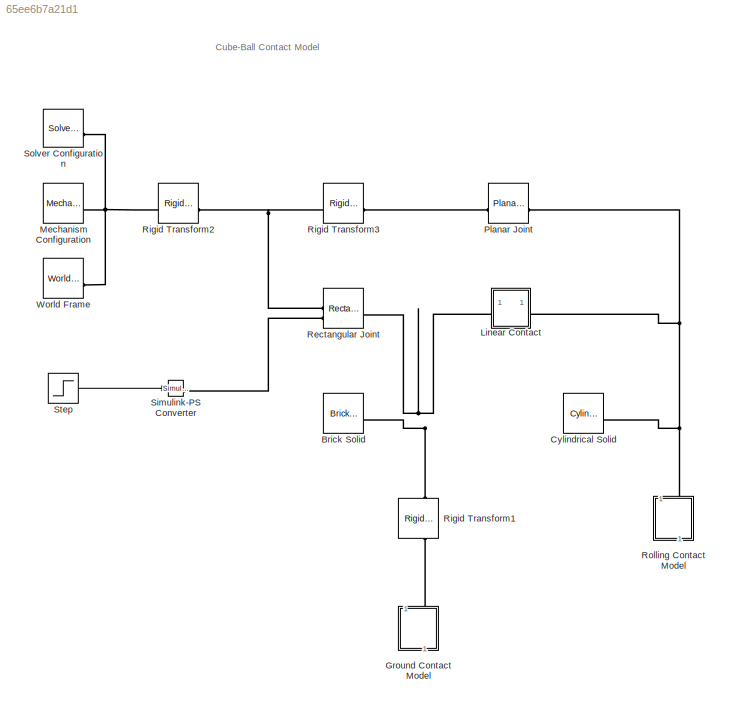
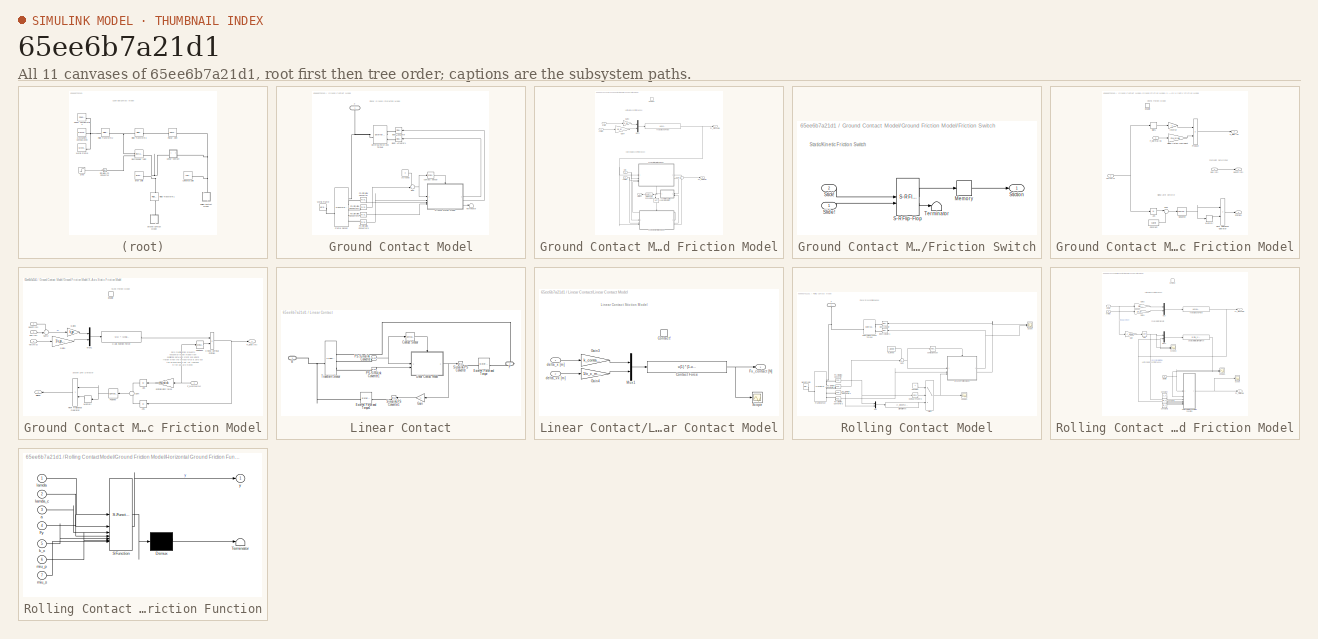
[diagram: thumbnail index - all 11 canvases of the model, root first then tree order]
MODEL slx_65ee6b7a21d1
KIND model
CONFIG AbsTol = auto
CONFIG EnableMultiTasking = off
CONFIG FixedStep = auto
CONFIG MaxStep = auto
CONFIG MinStep = auto
CONFIG RelTol = 1e-3
CONFIG SampleTimeConstraint = Unconstrained
CONFIG SolverName = VariableStepAuto
CONFIG StartTime = 0.0
CONFIG StopTime = 1
BLOCK [Reference] Brick Solid  REF=sm_lib/Body Elements/Brick Solid
  SourceBlock = sm_lib/Body Elements/Brick Solid
  SourceType = Brick Solid
BLOCK [Reference] Cylindrical Solid  REF=sm_lib/Body Elements/Cylindrical Solid
  SourceBlock = sm_lib/Body Elements/Cylindrical Solid
  SourceType = Cylindrical Solid
BLOCK [SubSystem] Ground Contact Model
  NameLocation = left
BLOCK [Reference] Ground Contact Model/ Body Actuator  REF=nesl_utility/Simulink-PS
Converter
  SourceBlock = nesl_utility/Simulink-PS\nConverter
  SourceType = Simulink-PS\nConverter
BLOCK [Reference] Ground Contact Model/ Body Actuator1  REF=nesl_utility/Simulink-PS
Converter
  SourceBlock = nesl_utility/Simulink-PS\nConverter
  SourceType = Simulink-PS\nConverter
BLOCK [Reference] Ground Contact Model/External Force and Torque  REF=sm_lib/Forces and
Torques/External Force
and Torque
  SourceBlock = sm_lib/Forces and\nTorques/External Force\nand Torque
  SourceType = External Force\nand Torque
BLOCK [PMIOPort] Ground Contact Model/F
  NameLocation = right
  Side = Left
BLOCK [Reference] Ground Contact Model/Frame Sensor  REF=sm_lib/Frames and
Transforms/Transform
Sensor
  SourceBlock = sm_lib/Frames and\nTransforms/Transform\nSensor
  SourceType = Transform\nSensor
BLOCK [SubSystem] Ground Contact Model/Ground Friction Model
BLOCK [EnablePort] Ground Contact Model/Ground Friction Model/Contact!
  StatesWhenEnabling = reset
BLOCK [DataTypeConversion] Ground Contact Model/Ground Friction Model/Data Type Conversion
  OutDataTypeStr = double
  RndMeth = Floor
  SaturateOnIntegerOverflow = off
BLOCK [SubSystem] Ground Contact Model/Ground Friction Model/Friction Switch
BLOCK [Memory] Ground Contact Model/Ground Friction Model/Friction Switch/Memory
BLOCK [Reference] Ground Contact Model/Ground Friction Model/Friction Switch/S-R Flip-Flop  REF=simulink_extras/Flip Flops/S-R
Flip-Flop
  SourceBlock = simulink_extras/Flip Flops/S-R\nFlip-Flop
  SourceType = SRFlipFlop
BLOCK [Inport] Ground Contact Model/Ground Friction Model/Friction Switch/Slide!
BLOCK [Inport] Ground Contact Model/Ground Friction Model/Friction Switch/Stick!
  NameLocation = top
  Port = 2
BLOCK [Outport] Ground Contact Model/Ground Friction Model/Friction Switch/Stiction
BLOCK [Terminator] Ground Contact Model/Ground Friction Model/Friction Switch/Terminator
BLOCK [Outport] Ground Contact Model/Ground Friction Model/Fx_Friction [N]
  AttributesFormatString = initial = '%<InitialOutput>'\nwhen\ndisabled\n'%<OutputWhenDisabled>'
  InitialOutput = 0
  OutputWhenDisabled = reset
  Port = 2
BLOCK [Outport] Ground Contact Model/Ground Friction Model/Fy_Ground[N]
  AttributesFormatString = initial = '%<InitialOutput>'\nwhen disabled = '%<OutputWhenDisabled>'
  InitialOutput = 0
  OutputWhenDisabled = reset
BLOCK [Gain] Ground Contact Model/Ground Friction Model/Gain3
  Gain = k_gy
BLOCK [Gain] Ground Contact Model/Ground Friction Model/Gain4
  Gain = 1/v_gy_max
BLOCK [Logic] Ground Contact Model/Ground Friction Model/Logical Operator
  AllPortsSameDT = off
  NameLocation = left
  Operator = NOT
  OutDataTypeStr = boolean
BLOCK [Mux] Ground Contact Model/Ground Friction Model/Mux1
  DisplayOption = bar
  Inputs = 2
BLOCK [Outport] Ground Contact Model/Ground Friction Model/Stiction!
  AttributesFormatString = initial = '%<InitialOutput>'\nwhen\ndisabled\n'%<OutputWhenDisabled>'
  InitialOutput = 0
  OutputWhenDisabled = reset
  Port = 3
BLOCK [Sum] Ground Contact Model/Ground Friction Model/Sum1
BLOCK [SubSystem] Ground Contact Model/Ground Friction Model/X-Axis Kinetic Friction Model
BLOCK [Abs] Ground Contact Model/Ground Friction Model/X-Axis Kinetic Friction Model/Abs
  SaturateOnIntegerOverflow = off
BLOCK [Constant] Ground Contact Model/Ground Friction Model/X-Axis Kinetic Friction Model/Constant
  Value = vLimit
BLOCK [EnablePort] Ground Contact Model/Ground Friction Model/X-Axis Kinetic Friction Model/Enable
  StatesWhenEnabling = reset
  ZeroCross = off
BLOCK [Inport] Ground Contact Model/Ground Friction Model/X-Axis Kinetic Friction Model/F_Normal [N]
  Port = 3
BLOCK [Outport] Ground Contact Model/Ground Friction Model/X-Axis Kinetic Friction Model/F_Slide [N]
  AttributesFormatString = initial = '%<InitialOutput>'\nwhen disabled = '%<OutputWhenDisabled>'
  InitialOutput = 0
  OutputWhenDisabled = reset
  Port = 3
BLOCK [RelationalOperator] Ground Contact Model/Ground Friction Model/X-Axis Kinetic Friction Model/FixPt Relational Operator
  InputSameDT = off
  Operator = >
  OutDataTypeStr = boolean
  ZeroCross = off
BLOCK [Memory] Ground Contact Model/Ground Friction Model/X-Axis Kinetic Friction Model/Memory
BLOCK [Reference] Ground Contact Model/Ground Friction Model/X-Axis Kinetic Friction Model/Negative  REF=simulink/Logic and Bit
Operations/Compare
To Zero
  SourceBlock = simulink/Logic and Bit\nOperations/Compare\nTo Zero
  SourceType = Compare To Zero
BLOCK [Product] Ground Contact Model/Ground Friction Model/X-Axis Kinetic Friction Model/Product
  RndMeth = Zero
BLOCK [Signum] Ground Contact Model/Ground Friction Model/X-Axis Kinetic Friction Model/Sign1
BLOCK [Outport] Ground Contact Model/Ground Friction Model/X-Axis Kinetic Friction Model/Stiction!
  AttributesFormatString = initial = '%<InitialOutput>'\nwhen disabled = '%<OutputWhenDisabled>'
  InitialOutput = 0
  OutputWhenDisabled = reset
  Port = 2
BLOCK [Sum] Ground Contact Model/Ground Friction Model/X-Axis Kinetic Friction Model/Sum
  Inputs = |+-
BLOCK [Inport] Ground Contact Model/Ground Friction Model/X-Axis Kinetic Friction Model/pos [m]
BLOCK [Outport] Ground Contact Model/Ground Friction Model/X-Axis Kinetic Friction Model/posFP [m]
  AttributesFormatString = initial = '%<InitialOutput>'\nwhen disabled = '%<OutputWhenDisabled>'
  InitialOutput = 0
BLOCK [Gain] Ground Contact Model/Ground Friction Model/X-Axis Kinetic Friction Model/reverse
  Gain = -1
BLOCK [Gain] Ground Contact Model/Ground Friction Model/X-Axis Kinetic Friction Model/sliding friction coefficient
  Gain = mu_slide
BLOCK [Inport] Ground Contact Model/Ground Friction Model/X-Axis Kinetic Friction Model/vel [m//s]
  NameLocation = top
  Port = 2
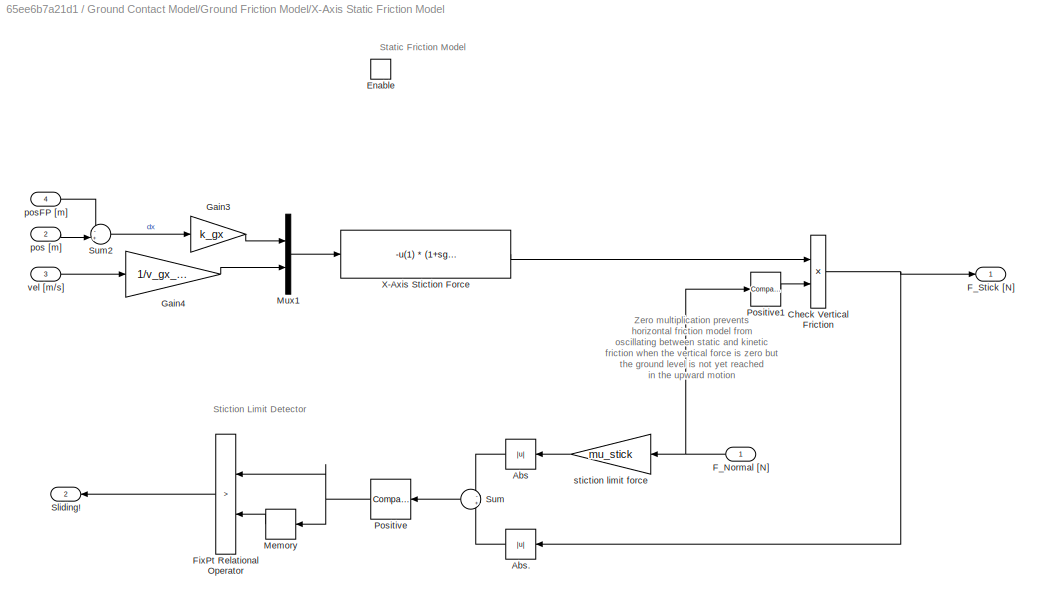
BLOCK [SubSystem] Ground Contact Model/Ground Friction Model/X-Axis Static Friction Model
  NameLocation = top
BLOCK [Abs] Ground Contact Model/Ground Friction Model/X-Axis Static Friction Model/Abs
  NameLocation = top
  SaturateOnIntegerOverflow = off
BLOCK [Abs] Ground Contact Model/Ground Friction Model/X-Axis Static Friction Model/Abs.
  SaturateOnIntegerOverflow = off
BLOCK [Product] Ground Contact Model/Ground Friction Model/X-Axis Static Friction Model/Check Vertical Friction
  RndMeth = Zero
BLOCK [EnablePort] Ground Contact Model/Ground Friction Model/X-Axis Static Friction Model/Enable
  StatesWhenEnabling = reset
  ZeroCross = off
BLOCK [Inport] Ground Contact Model/Ground Friction Model/X-Axis Static Friction Model/F_Normal [N]
  NameLocation = top
BLOCK [Outport] Ground Contact Model/Ground Friction Model/X-Axis Static Friction Model/F_Stick [N]
  AttributesFormatString = when disabled: %<OutputWhenDisabled>\ninitial: %<InitialOutput>
  InitialOutput = 0
  OutputWhenDisabled = reset
BLOCK [RelationalOperator] Ground Contact Model/Ground Friction Model/X-Axis Static Friction Model/FixPt Relational Operator
  InputSameDT = off
  Operator = >
  OutDataTypeStr = boolean
  ZeroCross = off
BLOCK [Gain] Ground Contact Model/Ground Friction Model/X-Axis Static Friction Model/Gain3
  Gain = k_gx
BLOCK [Gain] Ground Contact Model/Ground Friction Model/X-Axis Static Friction Model/Gain4
  Gain = 1/v_gx_max
BLOCK [Memory] Ground Contact Model/Ground Friction Model/X-Axis Static Friction Model/Memory
  NameLocation = top
BLOCK [Mux] Ground Contact Model/Ground Friction Model/X-Axis Static Friction Model/Mux1
  DisplayOption = bar
  Inputs = 2
BLOCK [Reference] Ground Contact Model/Ground Friction Model/X-Axis Static Friction Model/Positive  REF=simulink/Logic and Bit
Operations/Compare
To Zero
  SourceBlock = simulink/Logic and Bit\nOperations/Compare\nTo Zero
  SourceType = Compare To Zero
BLOCK [Reference] Ground Contact Model/Ground Friction Model/X-Axis Static Friction Model/Positive1  REF=simulink/Logic and Bit
Operations/Compare
To Zero
  NameLocation = top
  SourceBlock = simulink/Logic and Bit\nOperations/Compare\nTo Zero
  SourceType = Compare To Zero
BLOCK [Outport] Ground Contact Model/Ground Friction Model/X-Axis Static Friction Model/Sliding!
  AttributesFormatString = when disabled: %<OutputWhenDisabled>\ninitial: %<InitialOutput>
  InitialOutput = 0
  OutputWhenDisabled = reset
  Port = 2
BLOCK [Sum] Ground Contact Model/Ground Friction Model/X-Axis Static Friction Model/Sum
  Inputs = -+
  NameLocation = top
BLOCK [Sum] Ground Contact Model/Ground Friction Model/X-Axis Static Friction Model/Sum2
  Inputs = -+|
BLOCK [Fcn] Ground Contact Model/Ground Friction Model/X-Axis Static Friction Model/X-Axis Stiction Force
  Expr = -u(1) * (1+sgn(u(1))*u(2))
BLOCK [Inport] Ground Contact Model/Ground Friction Model/X-Axis Static Friction Model/pos [m]
  Port = 2
BLOCK [Inport] Ground Contact Model/Ground Friction Model/X-Axis Static Friction Model/posFP [m]
  NameLocation = top
  Port = 4
BLOCK [Gain] Ground Contact Model/Ground Friction Model/X-Axis Static Friction Model/stiction limit force
  Gain = mu_stick
  NameLocation = top
BLOCK [Inport] Ground Contact Model/Ground Friction Model/X-Axis Static Friction Model/vel [m//s]
  Port = 3
BLOCK [Fcn] Ground Contact Model/Ground Friction Model/Y-Axis Ground Force
  Expr = - u(1)  *  (1-u(2)) * (u(2)<1)
BLOCK [Inport] Ground Contact Model/Ground Friction Model/dy [m]
  NameLocation = top
BLOCK [Inport] Ground Contact Model/Ground Friction Model/vx [m//s]
  Port = 4
BLOCK [Inport] Ground Contact Model/Ground Friction Model/vy [m//s]
  Port = 2
BLOCK [Inport] Ground Contact Model/Ground Friction Model/x [m]
  Port = 3
BLOCK [Reference] Ground Contact Model/PS-Simulink Converter  REF=nesl_utility/PS-Simulink
Converter
  SourceBlock = nesl_utility/PS-Simulink\nConverter
  SourceType = PS-Simulink\nConverter
BLOCK [Reference] Ground Contact Model/PS-Simulink Converter1  REF=nesl_utility/PS-Simulink
Converter
  SourceBlock = nesl_utility/PS-Simulink\nConverter
  SourceType = PS-Simulink\nConverter
BLOCK [Reference] Ground Contact Model/PS-Simulink Converter2  REF=nesl_utility/PS-Simulink
Converter
  SourceBlock = nesl_utility/PS-Simulink\nConverter
  SourceType = PS-Simulink\nConverter
BLOCK [Reference] Ground Contact Model/PS-Simulink Converter3  REF=nesl_utility/PS-Simulink
Converter
  SourceBlock = nesl_utility/PS-Simulink\nConverter
  SourceType = PS-Simulink\nConverter
BLOCK [Sum] Ground Contact Model/Sum
  Inputs = -+|
BLOCK [Terminator] Ground Contact Model/Terminator
BLOCK [Reference] Ground Contact Model/World Frame  REF=sm_lib/Frames and
Transforms/World Frame
  SourceBlock = sm_lib/Frames and\nTransforms/World Frame
  SourceType = World Frame
BLOCK [Reference] Ground Contact Model/contact sensor  REF=simulink/Logic and Bit
Operations/Compare
To Zero
  NameLocation = top
  SourceBlock = simulink/Logic and Bit\nOperations/Compare\nTo Zero
  SourceType = Compare To Zero
BLOCK [Constant] Ground Contact Model/yGround
  Value = 0
BLOCK [SubSystem] Linear Contact
  NameLocation = top
BLOCK [PMIOPort] Linear Contact/B
  Side = Left
BLOCK [Reference] Linear Contact/Contact Sensor  REF=simulink/Logic and Bit
Operations/Compare
To Constant
  SourceBlock = simulink/Logic and Bit\nOperations/Compare\nTo Constant
  SourceType = Compare To Constant
BLOCK [Reference] Linear Contact/External Force and Torque  REF=sm_lib/Forces and
Torques/External Force
and Torque
  SourceBlock = sm_lib/Forces and\nTorques/External Force\nand Torque
  SourceType = External Force\nand Torque
BLOCK [Reference] Linear Contact/External Force and Torque1  REF=sm_lib/Forces and
Torques/External Force
and Torque
  NameLocation = top
  SourceBlock = sm_lib/Forces and\nTorques/External Force\nand Torque
  SourceType = External Force\nand Torque
BLOCK [PMIOPort] Linear Contact/F
  NameLocation = top
  Port = 2
  Side = Right
BLOCK [Gain] Linear Contact/Gain
  Gain = -1
  NameLocation = top
BLOCK [SubSystem] Linear Contact/Linear Contact Model
BLOCK [Fcn] Linear Contact/Linear Contact Model/Contact Force
  Expr = u(1)  *  (1-u(2)) * (u(2)<1)
BLOCK [EnablePort] Linear Contact/Linear Contact Model/Contact!
  StatesWhenEnabling = reset
BLOCK [Outport] Linear Contact/Linear Contact Model/Fx_contact [N]
  InitialOutput = 0
  OutputWhenDisabled = reset
BLOCK [Gain] Linear Contact/Linear Contact Model/Gain3
  Gain = k_contact
BLOCK [Gain] Linear Contact/Linear Contact Model/Gain4
  Gain = 1/v_c_max
BLOCK [Mux] Linear Contact/Linear Contact Model/Mux1
  DisplayOption = bar
  Inputs = 2
BLOCK [Scope] Linear Contact/Linear Contact Model/Scope
  Floating = off
  NumInputPorts = 1
  ScopeSpecificationString = Simulink.scopes.TimeScopeBlockCfg('CurrentConfiguration', extmgr.ConfigurationSet(extmgr.Configuration('Core','General UI',true),extmgr.Configuration('Core','Source UI',true),extmgr.Configuration('Sources','WiredSimulink',true),extmgr.Configuration('Visuals','Time Domain',true,'SerializedDisplays',{struct('MinYLimReal','-1382576.13519','MaxYLimReal','12443185.21671','YLabelReal','','MinYLimMag',' ...<+1497ch>
BLOCK [Inport] Linear Contact/Linear Contact Model/delta_vx [m]
  Port = 2
BLOCK [Inport] Linear Contact/Linear Contact Model/delta_x [m]
BLOCK [Reference] Linear Contact/PS-Simulink Converter  REF=nesl_utility/PS-Simulink
Converter
  SourceBlock = nesl_utility/PS-Simulink\nConverter
  SourceType = PS-Simulink\nConverter
BLOCK [Reference] Linear Contact/PS-Simulink Converter1  REF=nesl_utility/PS-Simulink
Converter
  SourceBlock = nesl_utility/PS-Simulink\nConverter
  SourceType = PS-Simulink\nConverter
BLOCK [Reference] Linear Contact/Simulink-PS Converter  REF=nesl_utility/Simulink-PS
Converter
  SourceBlock = nesl_utility/Simulink-PS\nConverter
  SourceType = Simulink-PS\nConverter
BLOCK [Reference] Linear Contact/Simulink-PS Converter1  REF=nesl_utility/Simulink-PS
Converter
  NameLocation = top
  SourceBlock = nesl_utility/Simulink-PS\nConverter
  SourceType = Simulink-PS\nConverter
BLOCK [Reference] Linear Contact/Transform Sensor  REF=sm_lib/Frames and
Transforms/Transform
Sensor
  SourceBlock = sm_lib/Frames and\nTransforms/Transform\nSensor
  SourceType = Transform\nSensor
BLOCK [Reference] Mechanism Configuration  REF=sm_lib/Utilities/Mechanism
Configuration
  SourceBlock = sm_lib/Utilities/Mechanism\nConfiguration
  SourceType = Mechanism\nConfiguration
BLOCK [Reference] Planar Joint  REF=sm_lib/Joints/Planar Joint
  SourceBlock = sm_lib/Joints/Planar Joint
  SourceType = Planar Joint
BLOCK [Reference] Rectangular Joint  REF=sm_lib/Joints/Rectangular
Joint
  SourceBlock = sm_lib/Joints/Rectangular\nJoint
  SourceType = Rectangular\nJoint
BLOCK [Reference] Rigid Transform1  REF=sm_lib/Frames and
Transforms/Rigid
Transform
  NameLocation = left
  SourceBlock = sm_lib/Frames and\nTransforms/Rigid\nTransform
  SourceType = Rigid\nTransform
BLOCK [Reference] Rigid Transform2  REF=sm_lib/Frames and
Transforms/Rigid
Transform
  SourceBlock = sm_lib/Frames and\nTransforms/Rigid\nTransform
  SourceType = Rigid\nTransform
BLOCK [Reference] Rigid Transform3  REF=sm_lib/Frames and
Transforms/Rigid
Transform
  SourceBlock = sm_lib/Frames and\nTransforms/Rigid\nTransform
  SourceType = Rigid\nTransform
BLOCK [SubSystem] Rolling Contact Model
  NameLocation = left
BLOCK [Reference] Rolling Contact Model/ Body Actuator  REF=nesl_utility/Simulink-PS
Converter
  SourceBlock = nesl_utility/Simulink-PS\nConverter
  SourceType = Simulink-PS\nConverter
BLOCK [Reference] Rolling Contact Model/ Body Actuator1  REF=nesl_utility/Simulink-PS
Converter
  SourceBlock = nesl_utility/Simulink-PS\nConverter
  SourceType = Simulink-PS\nConverter
BLOCK [Reference] Rolling Contact Model/Compare To Zero  REF=simulink/Logic and Bit
Operations/Compare
To Zero
  SourceBlock = simulink/Logic and Bit\nOperations/Compare\nTo Zero
  SourceType = Compare To Zero
BLOCK [Constant] Rolling Contact Model/Constant
BLOCK [Reference] Rolling Contact Model/External Force and Torque  REF=sm_lib/Forces and
Torques/External Force
and Torque
  SourceBlock = sm_lib/Forces and\nTorques/External Force\nand Torque
  SourceType = External Force\nand Torque
BLOCK [PMIOPort] Rolling Contact Model/F
  NameLocation = right
  Side = Left
BLOCK [Reference] Rolling Contact Model/Frame Sensor  REF=sm_lib/Frames and
Transforms/Transform
Sensor
  SourceBlock = sm_lib/Frames and\nTransforms/Transform\nSensor
  SourceType = Transform\nSensor
BLOCK [SubSystem] Rolling Contact Model/Ground Friction Model
BLOCK [Fcn] Rolling Contact Model/Ground Friction Model/Characteristic Slip Ratio Fcn
  Expr = (3 * miu_s * u(2))/(2 * u(1)^2 *k_x)
BLOCK [Constant] Rolling Contact Model/Ground Friction Model/Constant
  Value = k_x
BLOCK [Constant] Rolling Contact Model/Ground Friction Model/Constant1
  Value = miu_p
BLOCK [Constant] Rolling Contact Model/Ground Friction Model/Constant2
  Value = miu_s
BLOCK [EnablePort] Rolling Contact Model/Ground Friction Model/Contact!
  StatesWhenEnabling = reset
BLOCK [Outport] Rolling Contact Model/Ground Friction Model/Fx_Friction [N]
  AttributesFormatString = initial = '%<InitialOutput>'\nwhen\ndisabled\n'%<OutputWhenDisabled>'
  InitialOutput = 0
  OutputWhenDisabled = reset
  Port = 2
BLOCK [Outport] Rolling Contact Model/Ground Friction Model/Fy_Ground[N]
  AttributesFormatString = initial = '%<InitialOutput>'\nwhen disabled = '%<OutputWhenDisabled>'
  InitialOutput = 0
  OutputWhenDisabled = reset
BLOCK [Gain] Rolling Contact Model/Ground Friction Model/Gain
  Gain = -r_wheel
BLOCK [Gain] Rolling Contact Model/Ground Friction Model/Gain3
  Gain = pi/4 * E * 1
BLOCK [Gain] Rolling Contact Model/Ground Friction Model/Gain4
  Gain = 1/v_gy_max
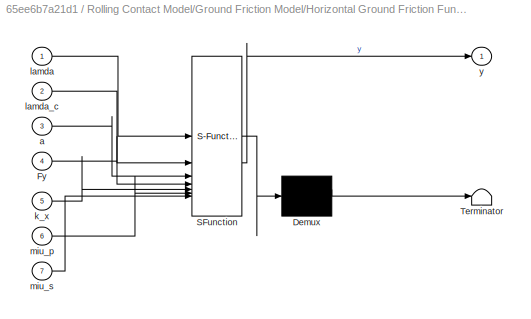
BLOCK [SubSystem] Rolling Contact Model/Ground Friction Model/Horizontal Ground Friction Function
  ErrorFcn = Stateflow.Translate.translate
  PermitHierarchicalResolution = ExplicitOnly
  SFBlockType = MATLAB Function
  TreatAsAtomicUnit = on
BLOCK [Demux] Rolling Contact Model/Ground Friction Model/Horizontal Ground Friction Function/ Demux 
  Outputs = 1
BLOCK [S-Function] Rolling Contact Model/Ground Friction Model/Horizontal Ground Friction Function/ SFunction 
  EnableBusSupport = on
  FunctionName = sf_sfun
  PortCounts = [7 2]
  SFcnIsStateOwnerBlock = off
  SFunctionDeploymentMode = off
  Tag = Stateflow S-Function 1
BLOCK [Terminator] Rolling Contact Model/Ground Friction Model/Horizontal Ground Friction Function/ Terminator 
BLOCK [Inport] Rolling Contact Model/Ground Friction Model/Horizontal Ground Friction Function/Fy
  Port = 4
BLOCK [Inport] Rolling Contact Model/Ground Friction Model/Horizontal Ground Friction Function/a
  Port = 3
BLOCK [Inport] Rolling Contact Model/Ground Friction Model/Horizontal Ground Friction Function/k_x
  Port = 5
BLOCK [Inport] Rolling Contact Model/Ground Friction Model/Horizontal Ground Friction Function/lamda
BLOCK [Inport] Rolling Contact Model/Ground Friction Model/Horizontal Ground Friction Function/lamda_c
  Port = 2
BLOCK [Inport] Rolling Contact Model/Ground Friction Model/Horizontal Ground Friction Function/miu_p
  Port = 6
BLOCK [Inport] Rolling Contact Model/Ground Friction Model/Horizontal Ground Friction Function/miu_s
  Port = 7
BLOCK [Outport] Rolling Contact Model/Ground Friction Model/Horizontal Ground Friction Function/y
BLOCK [Mux] Rolling Contact Model/Ground Friction Model/Mux
  DisplayOption = bar
  Inputs = 2
BLOCK [Mux] Rolling Contact Model/Ground Friction Model/Mux1
  DisplayOption = bar
  Inputs = 2
BLOCK [Scope] Rolling Contact Model/Ground Friction Model/Scope
  Floating = off
  NumInputPorts = 1
  ScopeSpecificationString = Simulink.scopes.TimeScopeBlockCfg('CurrentConfiguration', extmgr.ConfigurationSet(extmgr.Configuration('Core','General UI',true),extmgr.Configuration('Core','Source UI',true),extmgr.Configuration('Sources','WiredSimulink',true,'DataLoggingVariableName','ScopeData2'),extmgr.Configuration('Visuals','Time Domain',true,'SerializedDisplays',{struct('MinYLimReal','-62089.24304','MaxYLimReal','6765.58128...<+1540ch>
BLOCK [Scope] Rolling Contact Model/Ground Friction Model/Scope1
  Floating = off
  NumInputPorts = 2
  ScopeSpecificationString = Simulink.scopes.TimeScopeBlockCfg('CurrentConfiguration', extmgr.ConfigurationSet(extmgr.Configuration('Core','General UI',true),extmgr.Configuration('Core','Source UI',true),extmgr.Configuration('Sources','WiredSimulink',true,'DataLoggingVariableName','ScopeData3'),extmgr.Configuration('Visuals','Time Domain',true,'SerializedDisplays',{struct('MinYLimReal','-0.03562','MaxYLimReal','1.11507','YLab...<+1536ch>
BLOCK [Scope] Rolling Contact Model/Ground Friction Model/Scope2
  Floating = off
  NumInputPorts = 2
  ScopeSpecificationString = Simulink.scopes.TimeScopeBlockCfg('CurrentConfiguration', extmgr.ConfigurationSet(extmgr.Configuration('Core','General UI',true),extmgr.Configuration('Core','Source UI',true),extmgr.Configuration('Sources','WiredSimulink',true,'DataLoggingVariableName','ScopeData5'),extmgr.Configuration('Visuals','Time Domain',true,'SerializedDisplays',{struct('MinYLimReal','-1.00000','MaxYLimReal','1.00000','YLab...<+1518ch>
BLOCK [Sqrt] Rolling Contact Model/Ground Friction Model/Sqrt
BLOCK [Fcn] Rolling Contact Model/Ground Friction Model/Y-Axis Ground Force
  Expr = - u(1) * (1-u(2)) * (u(2)<1)
BLOCK [Inport] Rolling Contact Model/Ground Friction Model/dy [m]
  NameLocation = top
BLOCK [Inport] Rolling Contact Model/Ground Friction Model/slip ratio
  Port = 3
BLOCK [Inport] Rolling Contact Model/Ground Friction Model/vy [m//s]
  Port = 2
BLOCK [Mux] Rolling Contact Model/Mux
  DisplayOption = bar
  Inputs = 2
BLOCK [Reference] Rolling Contact Model/PS-Simulink Converter  REF=nesl_utility/PS-Simulink
Converter
  SourceBlock = nesl_utility/PS-Simulink\nConverter
  SourceType = PS-Simulink\nConverter
BLOCK [Reference] Rolling Contact Model/PS-Simulink Converter1  REF=nesl_utility/PS-Simulink
Converter
  SourceBlock = nesl_utility/PS-Simulink\nConverter
  SourceType = PS-Simulink\nConverter
BLOCK [Reference] Rolling Contact Model/PS-Simulink Converter2  REF=nesl_utility/PS-Simulink
Converter
  SourceBlock = nesl_utility/PS-Simulink\nConverter
  SourceType = PS-Simulink\nConverter
BLOCK [Reference] Rolling Contact Model/PS-Simulink Converter3  REF=nesl_utility/PS-Simulink
Converter
  SourceBlock = nesl_utility/PS-Simulink\nConverter
  SourceType = PS-Simulink\nConverter
BLOCK [Constant] Rolling Contact Model/R_wheel
  Value = r_wheel
BLOCK [Scope] Rolling Contact Model/Scope
  Floating = off
  NumInputPorts = 2
  ScopeSpecificationString = Simulink.scopes.TimeScopeBlockCfg('CurrentConfiguration', extmgr.ConfigurationSet(extmgr.Configuration('Core','General UI',true),extmgr.Configuration('Core','Source UI',true),extmgr.Configuration('Sources','WiredSimulink',true,'DataLoggingVariableName','ScopeData1'),extmgr.Configuration('Visuals','Time Domain',true,'SerializedDisplays',{struct('MinYLimReal','-1.00000','MaxYLimReal','1.00000','YLab...<+1497ch>
BLOCK [Scope] Rolling Contact Model/Scope1
  Floating = off
  NumInputPorts = 1
  ScopeSpecificationString = Simulink.scopes.TimeScopeBlockCfg('CurrentConfiguration', extmgr.ConfigurationSet(extmgr.Configuration('Core','General UI',true),extmgr.Configuration('Core','Source UI',true),extmgr.Configuration('Sources','WiredSimulink',true,'DataLoggingVariableName','ScopeData4'),extmgr.Configuration('Visuals','Time Domain',true,'SerializedDisplays',{struct('MinYLimReal','0.9','MaxYLimReal','1.1','YLabelReal','...<+1445ch>
BLOCK [Fcn] Rolling Contact Model/Slip Ratio Fcn
  Expr = (r_wheel * u(1) - u(2)) / (r_wheel * u(1))
BLOCK [Sum] Rolling Contact Model/Sum
  Inputs = -+|
BLOCK [Switch] Rolling Contact Model/Switch
  Criteria = u2 > Threshold
  InputSameDT = off
  SaturateOnIntegerOverflow = off
BLOCK [Reference] Rolling Contact Model/World Frame  REF=sm_lib/Frames and
Transforms/World Frame
  SourceBlock = sm_lib/Frames and\nTransforms/World Frame
  SourceType = World Frame
BLOCK [Reference] Rolling Contact Model/contact sensor  REF=simulink/Logic and Bit
Operations/Compare
To Zero
  NameLocation = top
  SourceBlock = simulink/Logic and Bit\nOperations/Compare\nTo Zero
  SourceType = Compare To Zero
BLOCK [Reference] Simulink-PS Converter  REF=nesl_utility/Simulink-PS
Converter
  SourceBlock = nesl_utility/Simulink-PS\nConverter
  SourceType = Simulink-PS\nConverter
BLOCK [Reference] Solver Configuration  REF=nesl_utility/Solver
Configuration
  SourceBlock = nesl_utility/Solver\nConfiguration
  SourceType = Solver\nConfiguration
BLOCK [Step] Step
  After = 0
  Before = 100
  SampleTime = 0
  Time = 8
BLOCK [Reference] World Frame   REF=sm_lib/Frames and
Transforms/World Frame
  SourceBlock = sm_lib/Frames and\nTransforms/World Frame
  SourceType = World Frame
ANNOTATION (root): Cube-Ball Contact Model
ANNOTATION Ground Contact Model: Planar Ground Interaction Model
ANNOTATION Ground Contact Model/Ground Friction Model: Horizontal Ground Friction Model
ANNOTATION Ground Contact Model/Ground Friction Model: Vertical Ground Stiction Model
ANNOTATION Ground Contact Model/Ground Friction Model/Friction Switch: Static/Kinetic Friction Switch
ANNOTATION Ground Contact Model/Ground Friction Model/X-Axis Kinetic Friction Model: Footpoint Determiner
ANNOTATION Ground Contact Model/Ground Friction Model/X-Axis Kinetic Friction Model: Kinetic Friction Model
ANNOTATION Ground Contact Model/Ground Friction Model/X-Axis Kinetic Friction Model: Sliding Limit Detector
ANNOTATION Ground Contact Model/Ground Friction Model/X-Axis Static Friction Model: Static Friction Model
ANNOTATION Ground Contact Model/Ground Friction Model/X-Axis Static Friction Model: Stiction Limit Detector
ANNOTATION Ground Contact Model/Ground Friction Model/X-Axis Static Friction Model: Zero multiplication prevents horizontal friction model from oscillating between static and kinetic friction when the vertical force is zero but the ground level is not yet reached in the upward motion
ANNOTATION Linear Contact/Linear Contact Model: Linear Contact Stiction Model
ANNOTATION Rolling Contact Model: Planar Ground Rolling Model
ANNOTATION Rolling Contact Model/Ground Friction Model: Characteristic Slip Ratio
ANNOTATION Rolling Contact Model/Ground Friction Model: Horizontal Ground Friction Model
ANNOTATION Rolling Contact Model/Ground Friction Model: Vertical Ground Stiction Model
LINE Ground Contact Model/Ground Friction Model/Data Type Conversion:1 -> Ground Contact Model/Ground Friction Model/Stiction!:1
LINE Ground Contact Model/Ground Friction Model/Friction Switch/Memory:1 -> Ground Contact Model/Ground Friction Model/Friction Switch/Stiction:1
LINE Ground Contact Model/Ground Friction Model/Friction Switch/S-R Flip-Flop:1 -> Ground Contact Model/Ground Friction Model/Friction Switch/Memory:1
LINE Ground Contact Model/Ground Friction Model/Friction Switch/S-R Flip-Flop:2 -> Ground Contact Model/Ground Friction Model/Friction Switch/Terminator:1
LINE Ground Contact Model/Ground Friction Model/Friction Switch/Slide!:1 -> Ground Contact Model/Ground Friction Model/Friction Switch/S-R Flip-Flop:2
LINE Ground Contact Model/Ground Friction Model/Friction Switch/Stick!:1 -> Ground Contact Model/Ground Friction Model/Friction Switch/S-R Flip-Flop:1
NET Ground Contact Model/Ground Friction Model/Friction Switch:1 -> Ground Contact Model/Ground Friction Model/Data Type Conversion:1, Ground Contact Model/Ground Friction Model/Logical Operator:1, Ground Contact Model/Ground Friction Model/X-Axis Static Friction Model:enable
LINE Ground Contact Model/Ground Friction Model/Gain3:1 -> Ground Contact Model/Ground Friction Model/Mux1:1
LINE Ground Contact Model/Ground Friction Model/Gain4:1 -> Ground Contact Model/Ground Friction Model/Mux1:2
LINE Ground Contact Model/Ground Friction Model/Logical Operator:1 -> Ground Contact Model/Ground Friction Model/X-Axis Kinetic Friction Model:enable
LINE Ground Contact Model/Ground Friction Model/Mux1:1 -> Ground Contact Model/Ground Friction Model/Y-Axis Ground Force:1
LINE Ground Contact Model/Ground Friction Model/Sum1:1 -> Ground Contact Model/Ground Friction Model/Fx_Friction [N]:1
LINE Ground Contact Model/Ground Friction Model/X-Axis Kinetic Friction Model/Abs:1 -> Ground Contact Model/Ground Friction Model/X-Axis Kinetic Friction Model/Sum:1
LINE Ground Contact Model/Ground Friction Model/X-Axis Kinetic Friction Model/Constant:1 -> Ground Contact Model/Ground Friction Model/X-Axis Kinetic Friction Model/Sum:2
LINE Ground Contact Model/Ground Friction Model/X-Axis Kinetic Friction Model/F_Normal [N]:1 -> Ground Contact Model/Ground Friction Model/X-Axis Kinetic Friction Model/sliding friction coefficient:1
LINE Ground Contact Model/Ground Friction Model/X-Axis Kinetic Friction Model/FixPt Relational Operator:1 -> Ground Contact Model/Ground Friction Model/X-Axis Kinetic Friction Model/Stiction!:1
LINE Ground Contact Model/Ground Friction Model/X-Axis Kinetic Friction Model/Memory:1 -> Ground Contact Model/Ground Friction Model/X-Axis Kinetic Friction Model/FixPt Relational Operator:2
NET Ground Contact Model/Ground Friction Model/X-Axis Kinetic Friction Model/Negative:1 -> Ground Contact Model/Ground Friction Model/X-Axis Kinetic Friction Model/FixPt Relational Operator:1, Ground Contact Model/Ground Friction Model/X-Axis Kinetic Friction Model/Memory:1
LINE Ground Contact Model/Ground Friction Model/X-Axis Kinetic Friction Model/Product:1 -> Ground Contact Model/Ground Friction Model/X-Axis Kinetic Friction Model/F_Slide [N]:1
LINE Ground Contact Model/Ground Friction Model/X-Axis Kinetic Friction Model/Sign1:1 -> Ground Contact Model/Ground Friction Model/X-Axis Kinetic Friction Model/reverse:1
LINE Ground Contact Model/Ground Friction Model/X-Axis Kinetic Friction Model/Sum:1 -> Ground Contact Model/Ground Friction Model/X-Axis Kinetic Friction Model/Negative:1
LINE Ground Contact Model/Ground Friction Model/X-Axis Kinetic Friction Model/pos [m]:1 -> Ground Contact Model/Ground Friction Model/X-Axis Kinetic Friction Model/posFP [m]:1
LINE Ground Contact Model/Ground Friction Model/X-Axis Kinetic Friction Model/reverse:1 -> Ground Contact Model/Ground Friction Model/X-Axis Kinetic Friction Model/Product:1
LINE Ground Contact Model/Ground Friction Model/X-Axis Kinetic Friction Model/sliding friction coefficient:1 -> Ground Contact Model/Ground Friction Model/X-Axis Kinetic Friction Model/Product:2
NET Ground Contact Model/Ground Friction Model/X-Axis Kinetic Friction Model/vel [m//s]:1 -> Ground Contact Model/Ground Friction Model/X-Axis Kinetic Friction Model/Abs:1, Ground Contact Model/Ground Friction Model/X-Axis Kinetic Friction Model/Sign1:1
LINE Ground Contact Model/Ground Friction Model/X-Axis Kinetic Friction Model:1 -> Ground Contact Model/Ground Friction Model/X-Axis Static Friction Model:4
LINE Ground Contact Model/Ground Friction Model/X-Axis Kinetic Friction Model:2 -> Ground Contact Model/Ground Friction Model/Friction Switch:2
LINE Ground Contact Model/Ground Friction Model/X-Axis Kinetic Friction Model:3 -> Ground Contact Model/Ground Friction Model/Sum1:2
LINE Ground Contact Model/Ground Friction Model/X-Axis Static Friction Model/Abs.:1 -> Ground Contact Model/Ground Friction Model/X-Axis Static Friction Model/Sum:2
LINE Ground Contact Model/Ground Friction Model/X-Axis Static Friction Model/Abs:1 -> Ground Contact Model/Ground Friction Model/X-Axis Static Friction Model/Sum:1
NET Ground Contact Model/Ground Friction Model/X-Axis Static Friction Model/Check Vertical Friction:1 -> Ground Contact Model/Ground Friction Model/X-Axis Static Friction Model/Abs.:1, Ground Contact Model/Ground Friction Model/X-Axis Static Friction Model/F_Stick [N]:1
NET Ground Contact Model/Ground Friction Model/X-Axis Static Friction Model/F_Normal [N]:1 -> Ground Contact Model/Ground Friction Model/X-Axis Static Friction Model/Positive1:1, Ground Contact Model/Ground Friction Model/X-Axis Static Friction Model/stiction limit force:1
LINE Ground Contact Model/Ground Friction Model/X-Axis Static Friction Model/FixPt Relational Operator:1 -> Ground Contact Model/Ground Friction Model/X-Axis Static Friction Model/Sliding!:1
LINE Ground Contact Model/Ground Friction Model/X-Axis Static Friction Model/Gain3:1 -> Ground Contact Model/Ground Friction Model/X-Axis Static Friction Model/Mux1:1
LINE Ground Contact Model/Ground Friction Model/X-Axis Static Friction Model/Gain4:1 -> Ground Contact Model/Ground Friction Model/X-Axis Static Friction Model/Mux1:2
LINE Ground Contact Model/Ground Friction Model/X-Axis Static Friction Model/Memory:1 -> Ground Contact Model/Ground Friction Model/X-Axis Static Friction Model/FixPt Relational Operator:2
LINE Ground Contact Model/Ground Friction Model/X-Axis Static Friction Model/Mux1:1 -> Ground Contact Model/Ground Friction Model/X-Axis Static Friction Model/X-Axis Stiction Force:1
LINE Ground Contact Model/Ground Friction Model/X-Axis Static Friction Model/Positive1:1 -> Ground Contact Model/Ground Friction Model/X-Axis Static Friction Model/Check Vertical Friction:2
NET Ground Contact Model/Ground Friction Model/X-Axis Static Friction Model/Positive:1 -> Ground Contact Model/Ground Friction Model/X-Axis Static Friction Model/FixPt Relational Operator:1, Ground Contact Model/Ground Friction Model/X-Axis Static Friction Model/Memory:1
LINE Ground Contact Model/Ground Friction Model/X-Axis Static Friction Model/Sum2:1 -> Ground Contact Model/Ground Friction Model/X-Axis Static Friction Model/Gain3:1
LINE Ground Contact Model/Ground Friction Model/X-Axis Static Friction Model/Sum:1 -> Ground Contact Model/Ground Friction Model/X-Axis Static Friction Model/Positive:1
LINE Ground Contact Model/Ground Friction Model/X-Axis Static Friction Model/X-Axis Stiction Force:1 -> Ground Contact Model/Ground Friction Model/X-Axis Static Friction Model/Check Vertical Friction:1
LINE Ground Contact Model/Ground Friction Model/X-Axis Static Friction Model/pos [m]:1 -> Ground Contact Model/Ground Friction Model/X-Axis Static Friction Model/Sum2:2
LINE Ground Contact Model/Ground Friction Model/X-Axis Static Friction Model/posFP [m]:1 -> Ground Contact Model/Ground Friction Model/X-Axis Static Friction Model/Sum2:1
LINE Ground Contact Model/Ground Friction Model/X-Axis Static Friction Model/stiction limit force:1 -> Ground Contact Model/Ground Friction Model/X-Axis Static Friction Model/Abs:1
LINE Ground Contact Model/Ground Friction Model/X-Axis Static Friction Model/vel [m//s]:1 -> Ground Contact Model/Ground Friction Model/X-Axis Static Friction Model/Gain4:1
LINE Ground Contact Model/Ground Friction Model/X-Axis Static Friction Model:1 -> Ground Contact Model/Ground Friction Model/Sum1:1
LINE Ground Contact Model/Ground Friction Model/X-Axis Static Friction Model:2 -> Ground Contact Model/Ground Friction Model/Friction Switch:1
NET Ground Contact Model/Ground Friction Model/Y-Axis Ground Force:1 -> Ground Contact Model/Ground Friction Model/Fy_Ground[N]:1, Ground Contact Model/Ground Friction Model/X-Axis Kinetic Friction Model:3, Ground Contact Model/Ground Friction Model/X-Axis Static Friction Model:1
LINE Ground Contact Model/Ground Friction Model/dy [m]:1 -> Ground Contact Model/Ground Friction Model/Gain3:1
NET Ground Contact Model/Ground Friction Model/vx [m//s]:1 -> Ground Contact Model/Ground Friction Model/X-Axis Kinetic Friction Model:2, Ground Contact Model/Ground Friction Model/X-Axis Static Friction Model:3
LINE Ground Contact Model/Ground Friction Model/vy [m//s]:1 -> Ground Contact Model/Ground Friction Model/Gain4:1
NET Ground Contact Model/Ground Friction Model/x [m]:1 -> Ground Contact Model/Ground Friction Model/X-Axis Kinetic Friction Model:1, Ground Contact Model/Ground Friction Model/X-Axis Static Friction Model:2
LINE Ground Contact Model/Ground Friction Model:1 -> Ground Contact Model/ Body Actuator1:1
LINE Ground Contact Model/Ground Friction Model:2 -> Ground Contact Model/ Body Actuator:1
LINE Ground Contact Model/Ground Friction Model:3 -> Ground Contact Model/Terminator:1
LINE Ground Contact Model/PS-Simulink Converter1:1 -> Ground Contact Model/Sum:2
LINE Ground Contact Model/PS-Simulink Converter2:1 -> Ground Contact Model/Ground Friction Model:4
LINE Ground Contact Model/PS-Simulink Converter3:1 -> Ground Contact Model/Ground Friction Model:2
LINE Ground Contact Model/PS-Simulink Converter:1 -> Ground Contact Model/Ground Friction Model:3
NET Ground Contact Model/Sum:1 -> Ground Contact Model/Ground Friction Model:1, Ground Contact Model/contact sensor:1
LINE Ground Contact Model/contact sensor:1 -> Ground Contact Model/Ground Friction Model:enable
LINE Ground Contact Model/yGround:1 -> Ground Contact Model/Sum:1
LINE Linear Contact/Contact Sensor:1 -> Linear Contact/Linear Contact Model:enable
LINE Linear Contact/Gain:1 -> Linear Contact/Simulink-PS Converter1:1
NET Linear Contact/Linear Contact Model/Contact Force:1 -> Linear Contact/Linear Contact Model/Fx_contact [N]:1, Linear Contact/Linear Contact Model/Scope:1
LINE Linear Contact/Linear Contact Model/Gain3:1 -> Linear Contact/Linear Contact Model/Mux1:1
LINE Linear Contact/Linear Contact Model/Gain4:1 -> Linear Contact/Linear Contact Model/Mux1:2
LINE Linear Contact/Linear Contact Model/Mux1:1 -> Linear Contact/Linear Contact Model/Contact Force:1
LINE Linear Contact/Linear Contact Model/delta_vx [m]:1 -> Linear Contact/Linear Contact Model/Gain4:1
LINE Linear Contact/Linear Contact Model/delta_x [m]:1 -> Linear Contact/Linear Contact Model/Gain3:1
NET Linear Contact/Linear Contact Model:1 -> Linear Contact/Gain:1, Linear Contact/Simulink-PS Converter:1
LINE Linear Contact/PS-Simulink Converter1:1 -> Linear Contact/Linear Contact Model:2
NET Linear Contact/PS-Simulink Converter:1 -> Linear Contact/Contact Sensor:1, Linear Contact/Linear Contact Model:1
LINE Rolling Contact Model/Compare To Zero:1 -> Rolling Contact Model/Switch:2
LINE Rolling Contact Model/Constant:1 -> Rolling Contact Model/Switch:1
NET Rolling Contact Model/Ground Friction Model/Characteristic Slip Ratio Fcn:1 -> Rolling Contact Model/Ground Friction Model/Horizontal Ground Friction Function:2, Rolling Contact Model/Ground Friction Model/Scope1:2
LINE Rolling Contact Model/Ground Friction Model/Constant1:1 -> Rolling Contact Model/Ground Friction Model/Horizontal Ground Friction Function:6
LINE Rolling Contact Model/Ground Friction Model/Constant2:1 -> Rolling Contact Model/Ground Friction Model/Horizontal Ground Friction Function:7
LINE Rolling Contact Model/Ground Friction Model/Constant:1 -> Rolling Contact Model/Ground Friction Model/Horizontal Ground Friction Function:5
LINE Rolling Contact Model/Ground Friction Model/Gain3:1 -> Rolling Contact Model/Ground Friction Model/Mux:1
LINE Rolling Contact Model/Ground Friction Model/Gain4:1 -> Rolling Contact Model/Ground Friction Model/Mux:2
LINE Rolling Contact Model/Ground Friction Model/Gain:1 -> Rolling Contact Model/Ground Friction Model/Sqrt:1
NET Rolling Contact Model/Ground Friction Model/Horizontal Ground Friction Function:1 -> Rolling Contact Model/Ground Friction Model/Fx_Friction [N]:1, Rolling Contact Model/Ground Friction Model/Scope:1
LINE Rolling Contact Model/Ground Friction Model/Mux1:1 -> Rolling Contact Model/Ground Friction Model/Characteristic Slip Ratio Fcn:1
LINE Rolling Contact Model/Ground Friction Model/Mux:1 -> Rolling Contact Model/Ground Friction Model/Y-Axis Ground Force:1
NET Rolling Contact Model/Ground Friction Model/Sqrt:1 -> Rolling Contact Model/Ground Friction Model/Horizontal Ground Friction Function:3, Rolling Contact Model/Ground Friction Model/Mux1:1, Rolling Contact Model/Ground Friction Model/Scope2:1
NET Rolling Contact Model/Ground Friction Model/Y-Axis Ground Force:1 -> Rolling Contact Model/Ground Friction Model/Fy_Ground[N]:1, Rolling Contact Model/Ground Friction Model/Horizontal Ground Friction Function:4, Rolling Contact Model/Ground Friction Model/Mux1:2, Rolling Contact Model/Ground Friction Model/Scope2:2
NET Rolling Contact Model/Ground Friction Model/dy [m]:1 -> Rolling Contact Model/Ground Friction Model/Gain3:1, Rolling Contact Model/Ground Friction Model/Gain:1
NET Rolling Contact Model/Ground Friction Model/slip ratio:1 -> Rolling Contact Model/Ground Friction Model/Horizontal Ground Friction Function:1, Rolling Contact Model/Ground Friction Model/Scope1:1
LINE Rolling Contact Model/Ground Friction Model/vy [m//s]:1 -> Rolling Contact Model/Ground Friction Model/Gain4:1
NET Rolling Contact Model/Ground Friction Model:1 -> Rolling Contact Model/ Body Actuator1:1, Rolling Contact Model/Scope:2
NET Rolling Contact Model/Ground Friction Model:2 -> Rolling Contact Model/ Body Actuator:1, Rolling Contact Model/Scope:1
LINE Rolling Contact Model/Mux:1 -> Rolling Contact Model/Slip Ratio Fcn:1
LINE Rolling Contact Model/PS-Simulink Converter1:1 -> Rolling Contact Model/Sum:2
LINE Rolling Contact Model/PS-Simulink Converter2:1 -> Rolling Contact Model/Mux:2
LINE Rolling Contact Model/PS-Simulink Converter3:1 -> Rolling Contact Model/Ground Friction Model:2
NET Rolling Contact Model/PS-Simulink Converter:1 -> Rolling Contact Model/Compare To Zero:1, Rolling Contact Model/Mux:1
LINE Rolling Contact Model/R_wheel:1 -> Rolling Contact Model/Sum:1
LINE Rolling Contact Model/Slip Ratio Fcn:1 -> Rolling Contact Model/Switch:3
NET Rolling Contact Model/Sum:1 -> Rolling Contact Model/Ground Friction Model:1, Rolling Contact Model/contact sensor:1
NET Rolling Contact Model/Switch:1 -> Rolling Contact Model/Ground Friction Model:3, Rolling Contact Model/Scope1:1
LINE Rolling Contact Model/contact sensor:1 -> Rolling Contact Model/Ground Friction Model:enable
LINE Step:1 -> Simulink-PS Converter:1
PNET net1: Brick Solid:RConn1 -- Linear Contact:LConn1 -- Rectangular Joint:RConn1 -- Rigid Transform1:LConn1
PNET net2: Cylindrical Solid:RConn1 -- Linear Contact:RConn1 -- Planar Joint:RConn1 -- Rolling Contact Model:LConn1
PLINE Ground Contact Model/ Body Actuator1:RConn1 -- Ground Contact Model/External Force and Torque:LConn2
PLINE Ground Contact Model/ Body Actuator:RConn1 -- Ground Contact Model/External Force and Torque:LConn1
PNET net3: Ground Contact Model/External Force and Torque:RConn1 -- Ground Contact Model/F:RConn1 -- Ground Contact Model/Frame Sensor:RConn1
PLINE Ground Contact Model/Frame Sensor:LConn1 -- Ground Contact Model/World Frame:RConn1
PLINE Ground Contact Model/Frame Sensor:RConn2 -- Ground Contact Model/PS-Simulink Converter:LConn1
PLINE Ground Contact Model/Frame Sensor:RConn3 -- Ground Contact Model/PS-Simulink Converter1:LConn1
PLINE Ground Contact Model/Frame Sensor:RConn4 -- Ground Contact Model/PS-Simulink Converter2:LConn1
PLINE Ground Contact Model/Frame Sensor:RConn5 -- Ground Contact Model/PS-Simulink Converter3:LConn1
PLINE Ground Contact Model:LConn1 -- Rigid Transform1:RConn1
PNET net4: Linear Contact/B:RConn1 -- Linear Contact/External Force and Torque1:RConn1 -- Linear Contact/Transform Sensor:LConn1
PLINE Linear Contact/External Force and Torque1:LConn1 -- Linear Contact/Simulink-PS Converter1:RConn1
PLINE Linear Contact/External Force and Torque:LConn1 -- Linear Contact/Simulink-PS Converter:RConn1
PNET net5: Linear Contact/External Force and Torque:RConn1 -- Linear Contact/F:RConn1 -- Linear Contact/Transform Sensor:RConn1
PLINE Linear Contact/PS-Simulink Converter1:LConn1 -- Linear Contact/Transform Sensor:RConn3
PLINE Linear Contact/PS-Simulink Converter:LConn1 -- Linear Contact/Transform Sensor:RConn2
PNET net6: Mechanism Configuration:RConn1 -- Rigid Transform2:LConn1 -- Solver Configuration:RConn1 -- World Frame :RConn1
PLINE Planar Joint:LConn1 -- Rigid Transform3:RConn1
PNET net7: Rectangular Joint:LConn1 -- Rigid Transform2:RConn1 -- Rigid Transform3:LConn1
PLINE Rectangular Joint:LConn2 -- Simulink-PS Converter:RConn1
PLINE Rolling Contact Model/ Body Actuator1:RConn1 -- Rolling Contact Model/External Force and Torque:LConn2
PLINE Rolling Contact Model/ Body Actuator:RConn1 -- Rolling Contact Model/External Force and Torque:LConn1
PNET net8: Rolling Contact Model/External Force and Torque:RConn1 -- Rolling Contact Model/F:RConn1 -- Rolling Contact Model/Frame Sensor:RConn1
PLINE Rolling Contact Model/Frame Sensor:LConn1 -- Rolling Contact Model/World Frame:RConn1
PLINE Rolling Contact Model/Frame Sensor:RConn2 -- Rolling Contact Model/PS-Simulink Converter:LConn1
PLINE Rolling Contact Model/Frame Sensor:RConn3 -- Rolling Contact Model/PS-Simulink Converter1:LConn1
PLINE Rolling Contact Model/Frame Sensor:RConn4 -- Rolling Contact Model/PS-Simulink Converter2:LConn1
PLINE Rolling Contact Model/Frame Sensor:RConn5 -- Rolling Contact Model/PS-Simulink Converter3:LConn1
note: NET lines group one-source signal fan-out (src -> all destinations, sorted); 1:1 wires keep LINE; PNET lines group multi-terminal physical nets as a canonical sorted terminal list (undirected conserving connections); 2-terminal nets keep the pairwise PLINE form
CHART Rolling
Contact
Model/Ground Friction Model/Horizontal Ground Friction Function states=1 transitions=1
  STATE_LABEL 'eML_blk_kernel()'
  STATE_LABEL 'SCRIPT:\nfunction y = fcn(lamda, lamda_c, a, Fy, k_x, miu_p, miu_s)\n\nif lamda <= lamda_c\n    y = 2 * a^2 * k_x * lamda * (1 - lamda / lamda_c) + miu_p * Fy * (lamda / lamda_c)^2 * (3 - 2 * lamda / lamda_c); \nelse\n    y = Fy * (miu_p + (miu_s - miu_p) / (lamda_c - 1)) * (lamda_c - lamda);\nend'
CHART  states=0 transitions=0
